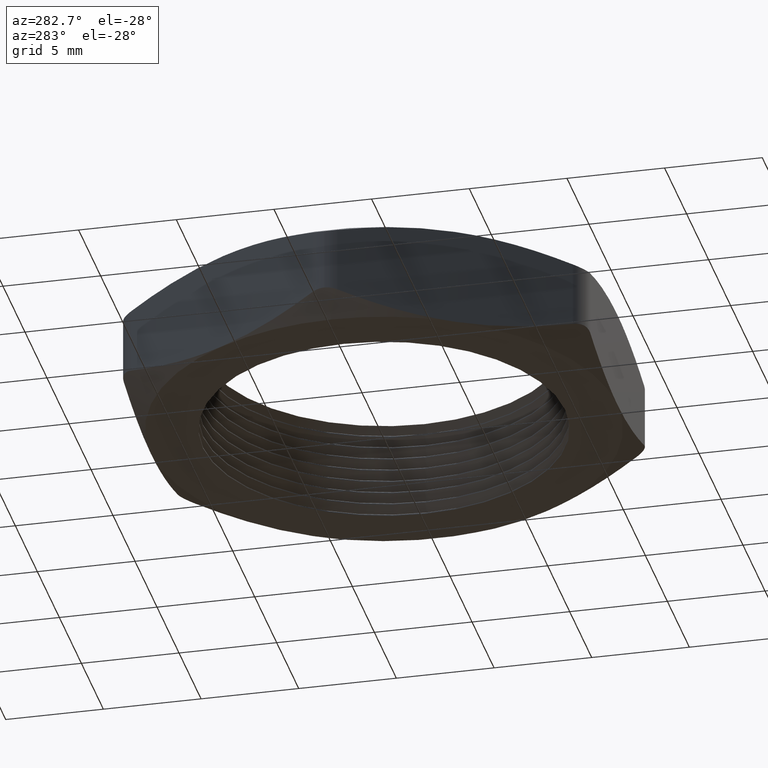
[diagram: clean part render]
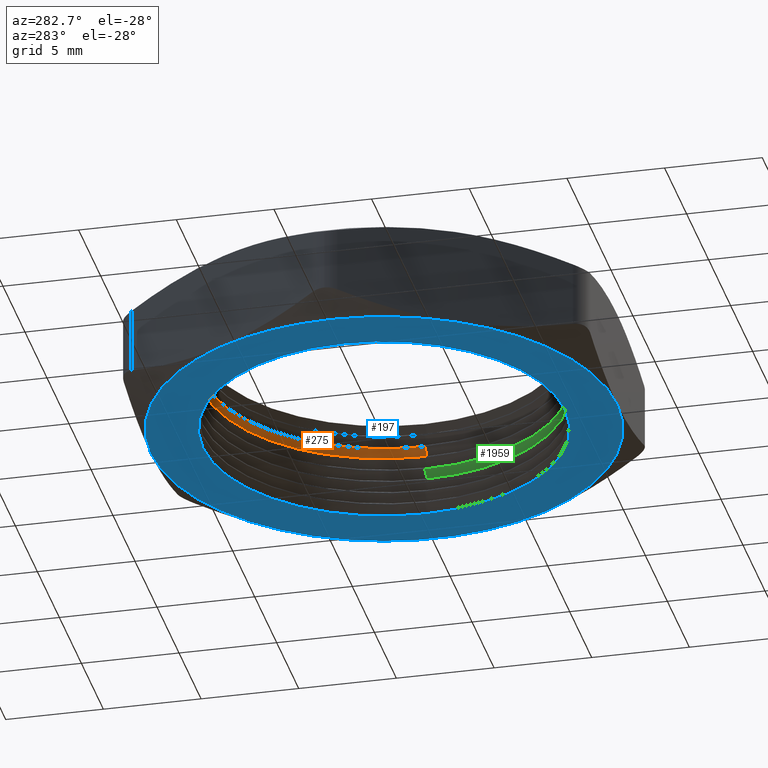
[diagram: same view with three faces highlighted in distinct colors, each labeled with its STEP entity id]
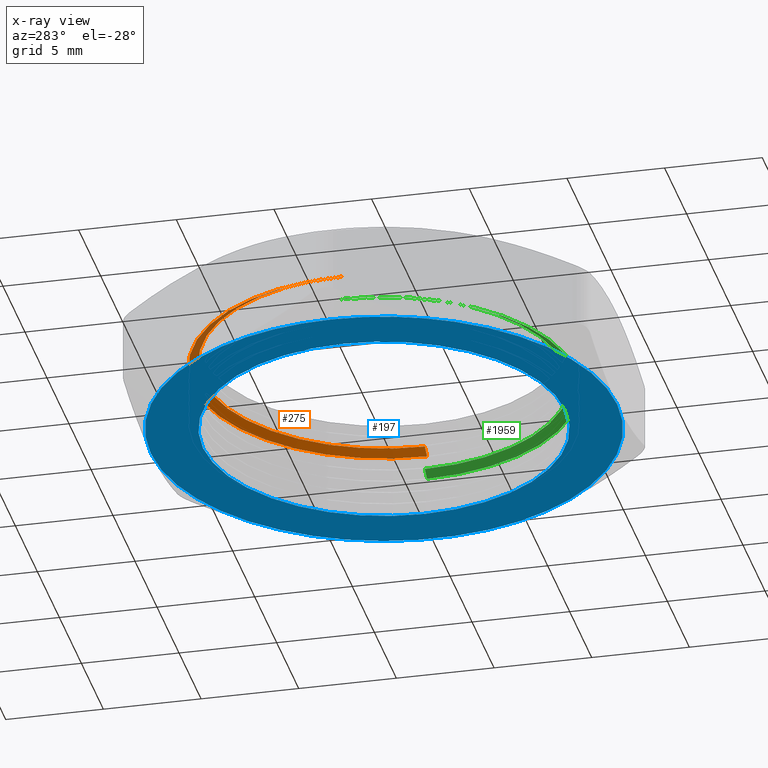
[diagram: x-ray of the same camera — body ghosted, the three highlighted faces saturated]
A machine part, auxiliary view with three faces highlighted in distinct colors.
The next image is the same camera in x-ray (body ghosted, the three faces saturated) — at least one of them is partly hidden behind the body in this view.
Their STEP definitions:

[orange] entity #275 — the highlighted conical surface has half-angle 60 deg.
#30 = EDGE_LOOP ( 'NONE', ( #272, #233, #229, #306 ) ) ;
#229 = ORIENTED_EDGE ( 'NONE', *, *, #2125, .T. ) ;
#233 = ORIENTED_EDGE ( 'NONE', *, *, #2182, .T. ) ;
#272 = ORIENTED_EDGE ( 'NONE', *, *, #2090, .F. ) ;
#275 = ADVANCED_FACE ( 'NONE', ( #785 ), #775, .F. ) ;
#306 = ORIENTED_EDGE ( 'NONE', *, *, #323, .F. ) ;
#323 = EDGE_CURVE ( 'NONE', #2080, #2012, #868, .T. ) ;
#526 = DIRECTION ( 'NONE',  ( -1.000000000000000000, 0.0000000000000000000, 0.0000000000000000000 ) ) ;
#527 = DIRECTION ( 'NONE',  ( 0.0000000000000000000, 0.0000000000000000000, -1.000000000000000000 ) ) ;
#775 = CONICAL_SURFACE ( 'NONE', #777, 0.3850000000000000100, 1.047197551196607600 ) ;
#776 = CARTESIAN_POINT ( 'NONE',  ( 0.0000000000000000000, 0.0000000000000000000, 0.1384529946162077500 ) ) ;
#777 = AXIS2_PLACEMENT_3D ( 'NONE', #776, #527, #526 ) ;
#785 = FACE_OUTER_BOUND ( 'NONE', #30, .T. ) ;
#864 = DIRECTION ( 'NONE',  ( 1.000000000000000000, 0.0000000000000000000, 0.0000000000000000000 ) ) ;
#865 = DIRECTION ( 'NONE',  ( 0.0000000000000000000, 0.0000000000000000000, 1.000000000000000000 ) ) ;
#866 = CARTESIAN_POINT ( 'NONE',  ( 0.0000000000000000000, 0.0000000000000000000, 0.1384529946162077500 ) ) ;
#867 = AXIS2_PLACEMENT_3D ( 'NONE', #866, #865, #864 ) ;
#868 = CIRCLE ( 'NONE', #867, 0.3850000000000000100 ) ;
#1072 = CARTESIAN_POINT ( 'NONE',  ( -0.3850000000000000100, 0.0000000000000000000, 0.1384529946162077500 ) ) ;
#1243 = CARTESIAN_POINT ( 'NONE',  ( 0.3850000000000000100, 4.714890176717309300E-017, 0.1384529946162077500 ) ) ;
#1370 = DIRECTION ( 'NONE',  ( -0.8660254037844434800, 0.0000000000000000000, -0.4999999999999913400 ) ) ;
#1371 = VECTOR ( 'NONE', #1370, 39.37007874015748900 ) ;
#1372 = CARTESIAN_POINT ( 'NONE',  ( -0.3850000000000000100, 0.0000000000000000000, 0.1384529946162077500 ) ) ;
#1373 = LINE ( 'NONE', #1372, #1371 ) ;
#1428 = DIRECTION ( 'NONE',  ( 0.8660254037844434800, 1.060575238724912700E-016, -0.4999999999999913400 ) ) ;
#1429 = VECTOR ( 'NONE', #1428, 39.37007874015748900 ) ;
#1430 = CARTESIAN_POINT ( 'NONE',  ( 0.3850000000000000100, 4.714890176717309300E-017, 0.1384529946162077500 ) ) ;
#1431 = LINE ( 'NONE', #1430, #1429 ) ;
#1432 = CARTESIAN_POINT ( 'NONE',  ( 0.3649999999999999900, 4.469960816887839200E-017, 0.1499999999999999900 ) ) ;
#1433 = CARTESIAN_POINT ( 'NONE',  ( -0.3649999999999999900, 0.0000000000000000000, 0.1499999999999999900 ) ) ;
#1482 = AXIS2_PLACEMENT_3D ( 'NONE', #1554, #1547, #1546 ) ;
#1483 = CIRCLE ( 'NONE', #1482, 0.3649999999999999900 ) ;
#1546 = DIRECTION ( 'NONE',  ( 1.000000000000000000, 0.0000000000000000000, 0.0000000000000000000 ) ) ;
#1547 = DIRECTION ( 'NONE',  ( 0.0000000000000000000, 0.0000000000000000000, 1.000000000000000000 ) ) ;
#1554 = CARTESIAN_POINT ( 'NONE',  ( 0.0000000000000000000, 0.0000000000000000000, 0.1499999999999999900 ) ) ;
#2012 = VERTEX_POINT ( 'NONE', #1072 ) ;
#2080 = VERTEX_POINT ( 'NONE', #1243 ) ;
#2087 = VERTEX_POINT ( 'NONE', #1433 ) ;
#2088 = VERTEX_POINT ( 'NONE', #1432 ) ;
#2090 = EDGE_CURVE ( 'NONE', #2088, #2080, #1431, .T. ) ;
#2125 = EDGE_CURVE ( 'NONE', #2087, #2012, #1373, .T. ) ;
#2182 = EDGE_CURVE ( 'NONE', #2088, #2087, #1483, .T. ) ;

[blue] entity #197 — the highlighted planar face has unit normal (0, 0, -1).
#54 = ORIENTED_EDGE ( 'NONE', *, *, #55, .T. ) ;
#55 = EDGE_CURVE ( 'NONE', #2301, #75, #369, .T. ) ;
#75 = VERTEX_POINT ( 'NONE', #475 ) ;
#77 = EDGE_LOOP ( 'NONE', ( #78, #120 ) ) ;
#78 = ORIENTED_EDGE ( 'NONE', *, *, #2190, .T. ) ;
#120 = ORIENTED_EDGE ( 'NONE', *, *, #2217, .T. ) ;
#121 = EDGE_LOOP ( 'NONE', ( #122, #124, #125, #127, #129, #131, #54 ) ) ;
#122 = ORIENTED_EDGE ( 'NONE', *, *, #123, .T. ) ;
#123 = EDGE_CURVE ( 'NONE', #75, #1883, #652, .T. ) ;
#124 = ORIENTED_EDGE ( 'NONE', *, *, #1873, .T. ) ;
#125 = ORIENTED_EDGE ( 'NONE', *, *, #126, .T. ) ;
#126 = EDGE_CURVE ( 'NONE', #1884, #2250, #713, .T. ) ;
#127 = ORIENTED_EDGE ( 'NONE', *, *, #128, .T. ) ;
#128 = EDGE_CURVE ( 'NONE', #2250, #191, #609, .T. ) ;
#129 = ORIENTED_EDGE ( 'NONE', *, *, #130, .T. ) ;
#130 = EDGE_CURVE ( 'NONE', #191, #2279, #672, .T. ) ;
#131 = ORIENTED_EDGE ( 'NONE', *, *, #132, .T. ) ;
#132 = EDGE_CURVE ( 'NONE', #2279, #2301, #668, .T. ) ;
#191 = VERTEX_POINT ( 'NONE', #554 ) ;
#197 = ADVANCED_FACE ( 'NONE', ( #611, #621 ), #541, .T. ) ;
#367 = DIRECTION ( 'NONE',  ( 0.0000000000000000000, 0.0000000000000000000, -1.000000000000000000 ) ) ;
#368 = AXIS2_PLACEMENT_3D ( 'NONE', #491, #367, #407 ) ;
#369 = CIRCLE ( 'NONE', #368, 0.4700000000000000300 ) ;
#407 = DIRECTION ( 'NONE',  ( -1.000000000000000000, 0.0000000000000000000, 0.0000000000000000000 ) ) ;
#475 = CARTESIAN_POINT ( 'NONE',  ( -0.4070319397786862900, -0.2349999999999999600, 0.0000000000000000000 ) ) ;
#491 = CARTESIAN_POINT ( 'NONE',  ( 0.0000000000000000000, 0.0000000000000000000, 0.0000000000000000000 ) ) ;
#528 = DIRECTION ( 'NONE',  ( -1.000000000000000000, 0.0000000000000000000, 0.0000000000000000000 ) ) ;
#529 = DIRECTION ( 'NONE',  ( 0.0000000000000000000, 0.0000000000000000000, -1.000000000000000000 ) ) ;
#530 = CARTESIAN_POINT ( 'NONE',  ( 6.829619984160658000E-017, 0.9400000000000005000, 0.0000000000000000000 ) ) ;
#531 = AXIS2_PLACEMENT_3D ( 'NONE', #530, #529, #528 ) ;
#541 = PLANE ( 'NONE',  #531 ) ;
#554 = CARTESIAN_POINT ( 'NONE',  ( 0.4070319397786862900, 0.2350000000000000400, 0.0000000000000000000 ) ) ;
#605 = DIRECTION ( 'NONE',  ( -1.000000000000000000, 0.0000000000000000000, 0.0000000000000000000 ) ) ;
#606 = DIRECTION ( 'NONE',  ( 0.0000000000000000000, 0.0000000000000000000, -1.000000000000000000 ) ) ;
#607 = CARTESIAN_POINT ( 'NONE',  ( 0.0000000000000000000, 0.0000000000000000000, 0.0000000000000000000 ) ) ;
#608 = AXIS2_PLACEMENT_3D ( 'NONE', #607, #606, #605 ) ;
#609 = CIRCLE ( 'NONE', #608, 0.4700000000000000300 ) ;
#610 = CARTESIAN_POINT ( 'NONE',  ( 0.0000000000000000000, 0.0000000000000000000, 0.0000000000000000000 ) ) ;
#611 = FACE_BOUND ( 'NONE', #77, .T. ) ;
#621 = FACE_OUTER_BOUND ( 'NONE', #121, .T. ) ;
#649 = DIRECTION ( 'NONE',  ( 0.0000000000000000000, 0.0000000000000000000, -1.000000000000000000 ) ) ;
#650 = CARTESIAN_POINT ( 'NONE',  ( 0.0000000000000000000, 0.0000000000000000000, 0.0000000000000000000 ) ) ;
#651 = AXIS2_PLACEMENT_3D ( 'NONE', #650, #649, #714 ) ;
#652 = CIRCLE ( 'NONE', #651, 0.4700000000000000300 ) ;
#653 = CARTESIAN_POINT ( 'NONE',  ( 0.0000000000000000000, 0.0000000000000000000, 0.0000000000000000000 ) ) ;
#665 = DIRECTION ( 'NONE',  ( -1.000000000000000000, 0.0000000000000000000, 0.0000000000000000000 ) ) ;
#666 = DIRECTION ( 'NONE',  ( 0.0000000000000000000, 0.0000000000000000000, -1.000000000000000000 ) ) ;
#667 = AXIS2_PLACEMENT_3D ( 'NONE', #673, #666, #665 ) ;
#668 = CIRCLE ( 'NONE', #667, 0.4700000000000000300 ) ;
#669 = DIRECTION ( 'NONE',  ( -1.000000000000000000, 0.0000000000000000000, 0.0000000000000000000 ) ) ;
#670 = DIRECTION ( 'NONE',  ( 0.0000000000000000000, 0.0000000000000000000, -1.000000000000000000 ) ) ;
#671 = AXIS2_PLACEMENT_3D ( 'NONE', #610, #670, #669 ) ;
#672 = CIRCLE ( 'NONE', #671, 0.4700000000000000300 ) ;
#673 = CARTESIAN_POINT ( 'NONE',  ( 0.0000000000000000000, 0.0000000000000000000, 0.0000000000000000000 ) ) ;
#710 = DIRECTION ( 'NONE',  ( -1.000000000000000000, 0.0000000000000000000, 0.0000000000000000000 ) ) ;
#711 = DIRECTION ( 'NONE',  ( 0.0000000000000000000, 0.0000000000000000000, -1.000000000000000000 ) ) ;
#712 = AXIS2_PLACEMENT_3D ( 'NONE', #653, #711, #710 ) ;
#713 = CIRCLE ( 'NONE', #712, 0.4700000000000000800 ) ;
#714 = DIRECTION ( 'NONE',  ( -1.000000000000000000, 0.0000000000000000000, 0.0000000000000000000 ) ) ;
#886 = DIRECTION ( 'NONE',  ( 0.0000000000000000000, 0.0000000000000000000, -1.000000000000000000 ) ) ;
#887 = CARTESIAN_POINT ( 'NONE',  ( 0.0000000000000000000, 0.0000000000000000000, 0.0000000000000000000 ) ) ;
#888 = AXIS2_PLACEMENT_3D ( 'NONE', #887, #886, #899 ) ;
#889 = CIRCLE ( 'NONE', #888, 0.4700000000000000300 ) ;
#899 = DIRECTION ( 'NONE',  ( -1.000000000000000000, 0.0000000000000000000, 0.0000000000000000000 ) ) ;
#913 = CARTESIAN_POINT ( 'NONE',  ( -0.4070319397786861800, 0.2350000000000001300, 0.0000000000000000000 ) ) ;
#930 = CARTESIAN_POINT ( 'NONE',  ( -0.4700000000000000300, 0.0000000000000000000, 0.0000000000000000000 ) ) ;
#1319 = CARTESIAN_POINT ( 'NONE',  ( -0.3649999999999999900, 0.0000000000000000000, 0.0000000000000000000 ) ) ;
#1484 = CARTESIAN_POINT ( 'NONE',  ( 0.3649999999999999900, 4.469960816887839200E-017, 0.0000000000000000000 ) ) ;
#1523 = DIRECTION ( 'NONE',  ( 1.000000000000000000, 0.0000000000000000000, 0.0000000000000000000 ) ) ;
#1524 = DIRECTION ( 'NONE',  ( 0.0000000000000000000, 0.0000000000000000000, 1.000000000000000000 ) ) ;
#1525 = CARTESIAN_POINT ( 'NONE',  ( 0.0000000000000000000, 0.0000000000000000000, 0.0000000000000000000 ) ) ;
#1526 = AXIS2_PLACEMENT_3D ( 'NONE', #1525, #1524, #1523 ) ;
#1527 = CIRCLE ( 'NONE', #1526, 0.3649999999999999900 ) ;
#1647 = CARTESIAN_POINT ( 'NONE',  ( 0.4070319397786861800, -0.2350000000000001300, 0.0000000000000000000 ) ) ;
#1692 = CARTESIAN_POINT ( 'NONE',  ( 5.914624404477002600E-017, -0.4700000000000000800, 0.0000000000000000000 ) ) ;
#1740 = DIRECTION ( 'NONE',  ( 1.000000000000000000, 0.0000000000000000000, 0.0000000000000000000 ) ) ;
#1741 = DIRECTION ( 'NONE',  ( 0.0000000000000000000, 0.0000000000000000000, 1.000000000000000000 ) ) ;
#1742 = CARTESIAN_POINT ( 'NONE',  ( 0.0000000000000000000, 0.0000000000000000000, 0.0000000000000000000 ) ) ;
#1743 = AXIS2_PLACEMENT_3D ( 'NONE', #1742, #1741, #1740 ) ;
#1744 = CIRCLE ( 'NONE', #1743, 0.3649999999999999900 ) ;
#1750 = CARTESIAN_POINT ( 'NONE',  ( -5.914624404477003900E-017, 0.4700000000000000300, 0.0000000000000000000 ) ) ;
#1873 = EDGE_CURVE ( 'NONE', #1883, #1884, #889, .T. ) ;
#1883 = VERTEX_POINT ( 'NONE', #930 ) ;
#1884 = VERTEX_POINT ( 'NONE', #913 ) ;
#2164 = VERTEX_POINT ( 'NONE', #1319 ) ;
#2184 = VERTEX_POINT ( 'NONE', #1484 ) ;
#2190 = EDGE_CURVE ( 'NONE', #2164, #2184, #1527, .T. ) ;
#2217 = EDGE_CURVE ( 'NONE', #2184, #2164, #1744, .T. ) ;
#2250 = VERTEX_POINT ( 'NONE', #1750 ) ;
#2279 = VERTEX_POINT ( 'NONE', #1647 ) ;
#2301 = VERTEX_POINT ( 'NONE', #1692 ) ;

[green] entity #1959 — the highlighted conical surface has half-angle 60 deg.
#1004 = DIRECTION ( 'NONE',  ( -0.8660254037844434800, 0.0000000000000000000, -0.4999999999999913400 ) ) ;
#1005 = VECTOR ( 'NONE', #1004, 39.37007874015748900 ) ;
#1006 = CARTESIAN_POINT ( 'NONE',  ( -0.3850000000000000100, 0.0000000000000000000, 0.08845299461620775800 ) ) ;
#1007 = LINE ( 'NONE', #1006, #1005 ) ;
#1043 = DIRECTION ( 'NONE',  ( -1.000000000000000000, 0.0000000000000000000, 0.0000000000000000000 ) ) ;
#1044 = DIRECTION ( 'NONE',  ( 0.0000000000000000000, 0.0000000000000000000, -1.000000000000000000 ) ) ;
#1045 = CARTESIAN_POINT ( 'NONE',  ( 0.0000000000000000000, 0.0000000000000000000, 0.08845299461620775800 ) ) ;
#1046 = AXIS2_PLACEMENT_3D ( 'NONE', #1045, #1044, #1043 ) ;
#1048 = CONICAL_SURFACE ( 'NONE', #1046, 0.3850000000000000100, 1.047197551196607600 ) ;
#1049 = FACE_OUTER_BOUND ( 'NONE', #1960, .T. ) ;
#1145 = DIRECTION ( 'NONE',  ( 0.8660254037844434800, 1.060575238724912700E-016, -0.4999999999999913400 ) ) ;
#1146 = VECTOR ( 'NONE', #1145, 39.37007874015748900 ) ;
#1147 = CARTESIAN_POINT ( 'NONE',  ( 0.3850000000000000100, 4.714890176717309300E-017, 0.08845299461620775800 ) ) ;
#1148 = LINE ( 'NONE', #1147, #1146 ) ;
#1150 = DIRECTION ( 'NONE',  ( 1.000000000000000000, 0.0000000000000000000, 0.0000000000000000000 ) ) ;
#1151 = DIRECTION ( 'NONE',  ( 0.0000000000000000000, 0.0000000000000000000, 1.000000000000000000 ) ) ;
#1152 = CARTESIAN_POINT ( 'NONE',  ( 0.0000000000000000000, 0.0000000000000000000, 0.08845299461620775800 ) ) ;
#1153 = AXIS2_PLACEMENT_3D ( 'NONE', #1152, #1151, #1150 ) ;
#1176 = CARTESIAN_POINT ( 'NONE',  ( -0.3649999999999999900, 0.0000000000000000000, 0.1000000000000000100 ) ) ;
#1212 = CIRCLE ( 'NONE', #1153, 0.3850000000000000100 ) ;
#1217 = CARTESIAN_POINT ( 'NONE',  ( -0.3850000000000000100, 0.0000000000000000000, 0.08845299461620775800 ) ) ;
#1249 = DIRECTION ( 'NONE',  ( 1.000000000000000000, 0.0000000000000000000, 0.0000000000000000000 ) ) ;
#1250 = DIRECTION ( 'NONE',  ( 0.0000000000000000000, 0.0000000000000000000, 1.000000000000000000 ) ) ;
#1251 = AXIS2_PLACEMENT_3D ( 'NONE', #1387, #1250, #1249 ) ;
#1266 = CARTESIAN_POINT ( 'NONE',  ( 0.3850000000000000100, 4.714890176717309300E-017, 0.08845299461620775800 ) ) ;
#1387 = CARTESIAN_POINT ( 'NONE',  ( 0.0000000000000000000, 0.0000000000000000000, 0.1000000000000000100 ) ) ;
#1388 = CIRCLE ( 'NONE', #1251, 0.3649999999999999900 ) ;
#1476 = CARTESIAN_POINT ( 'NONE',  ( 0.3649999999999999900, 4.469960816887839200E-017, 0.1000000000000000100 ) ) ;
#1946 = ORIENTED_EDGE ( 'NONE', *, *, #2024, .T. ) ;
#1951 = ORIENTED_EDGE ( 'NONE', *, *, #1952, .F. ) ;
#1952 = EDGE_CURVE ( 'NONE', #1991, #2018, #1007, .T. ) ;
#1959 = ADVANCED_FACE ( 'NONE', ( #1049 ), #1048, .F. ) ;
#1960 = EDGE_LOOP ( 'NONE', ( #1996, #1946, #1997, #1951 ) ) ;
#1991 = VERTEX_POINT ( 'NONE', #1176 ) ;
#1996 = ORIENTED_EDGE ( 'NONE', *, *, #2077, .T. ) ;
#1997 = ORIENTED_EDGE ( 'NONE', *, *, #2020, .F. ) ;
#2018 = VERTEX_POINT ( 'NONE', #1217 ) ;
#2020 = EDGE_CURVE ( 'NONE', #2018, #2102, #1212, .T. ) ;
#2024 = EDGE_CURVE ( 'NONE', #2148, #2102, #1148, .T. ) ;
#2077 = EDGE_CURVE ( 'NONE', #1991, #2148, #1388, .T. ) ;
#2102 = VERTEX_POINT ( 'NONE', #1266 ) ;
#2148 = VERTEX_POINT ( 'NONE', #1476 ) ;